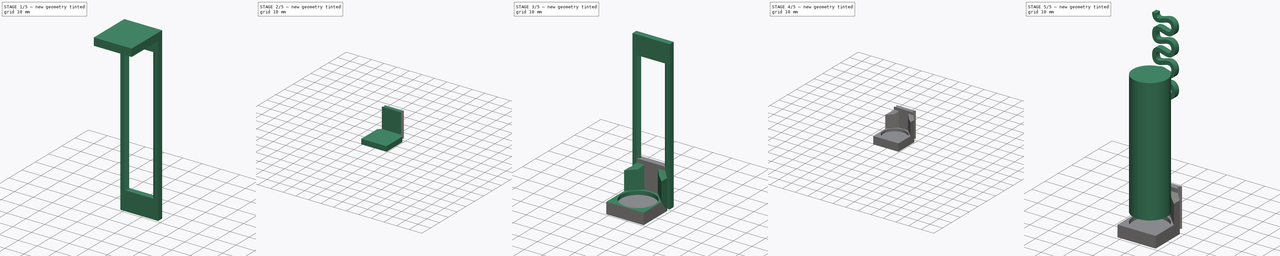
[diagram: build sequence overview — one tinted view per stage of 5, left to right]
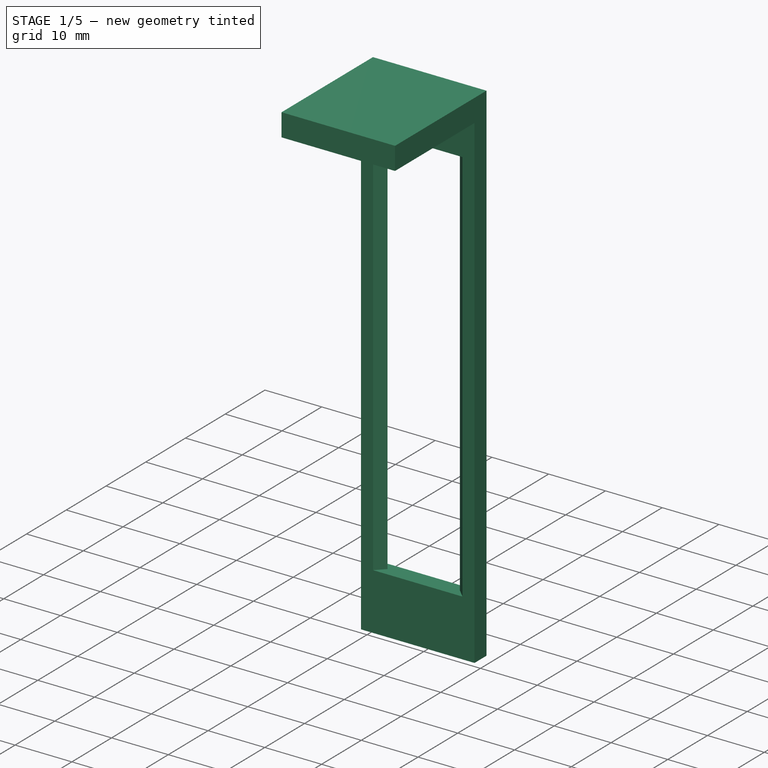
[diagram: stage 1 of 5 — iso view after this stage's code; geometry added in this stage tinted green]
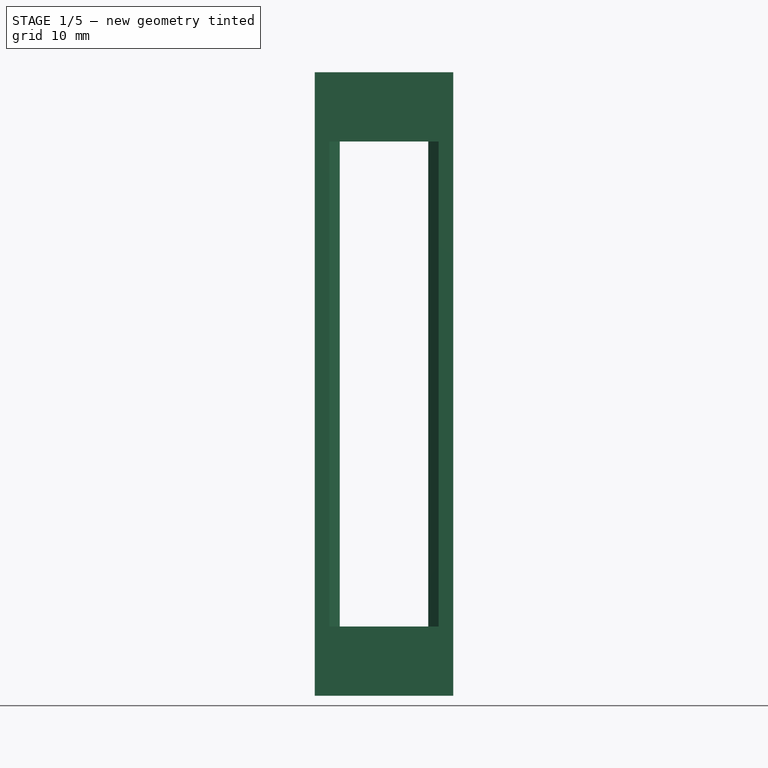
[diagram: stage 1 of 5 — front view after this stage's code; geometry added in this stage tinted green]
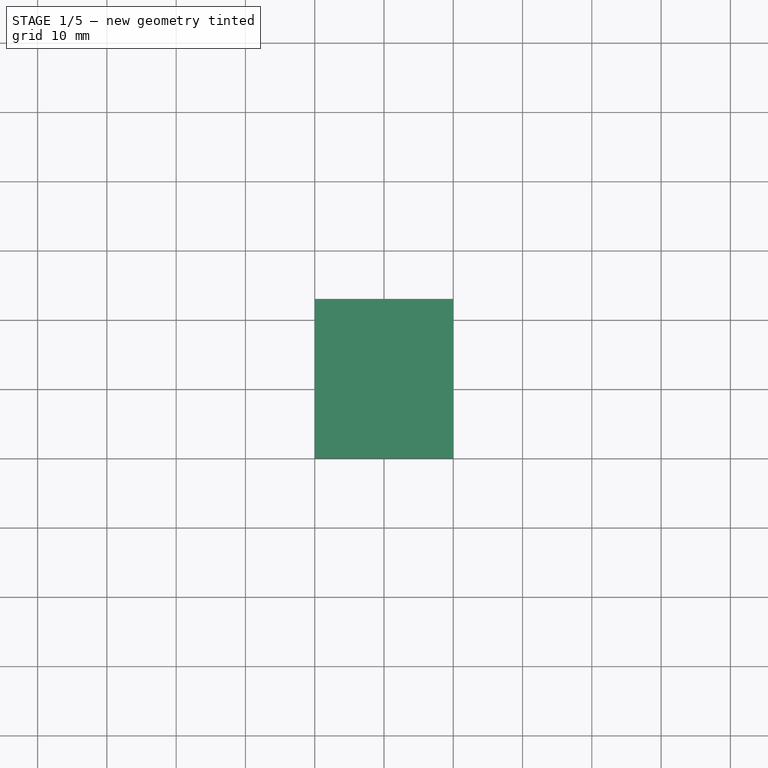
[diagram: stage 1 of 5 — top view after this stage's code; geometry added in this stage tinted green]
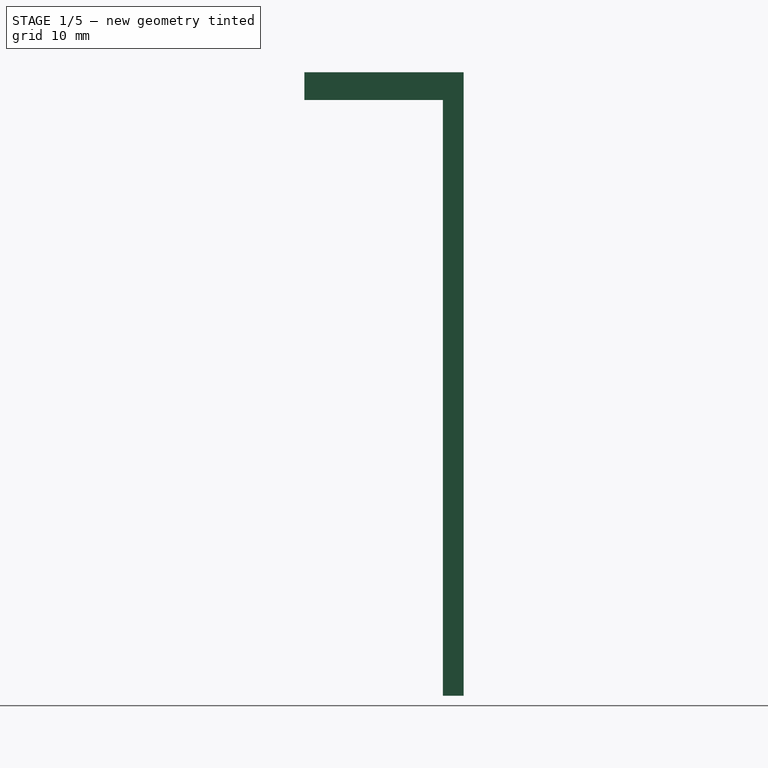
[diagram: stage 1 of 5 — right view after this stage's code; geometry added in this stage tinted green]
FCSTD DOCUMENT  (FreeCAD 1.1R20251111 (Git shallow))
Label: 18650mount
License: All rights reserved
LicenseURL: https://en.wikipedia.org/wiki/All_rights_reserved
objects: Sketcher::SketchObject×19, PartDesign::Pad×16, App::Point×6, PartDesign::Body×6, Part::DatumPlane×3, PartDesign::SubShapeBinder×3, PartDesign::Chamfer×2, PartDesign::AdditivePipe×1, PartDesign::LinearPattern×1, PartDesign::Pocket×1
note: 109 computed .brp shape members not serialized (recipe doc carries the construction recipe); baked Part::Feature solids carry a one-line shape summary decoded from their .brp

FEATURE [PartDesign::Body] Body001  label="sled"
  AllowCompound = true
  Group = -> [DatumPlane,Binder,Sketch003,Pad003,Sketch008,Pad006,Sketch009,Pad007]
  Origin = -> Origin002
  Placement = pos=(0,0,10) rot=(0,0,1;0rad)
  Tip = -> Pad007
FEATURE [PartDesign::SubShapeBinder] Binder002
  BindCopyOnChange = 0
  BindMode = 0
  ClaimChildren = false
  Context = -> Body005 [Binder002.]
  Fuse = false
  MakeFace = true
  OffsetFill = false
  OffsetIntersection = false
  OffsetJoinType = 0
  OffsetOpenResult = false
  PartialLoad = false
  Refine = true
  Relative = true
  Support = -> [Body004[Pad010.Face9]]
  _Version = 2
FEATURE [Part::DatumPlane] DatumPlane002
  AttachmentOffset = pos=(0,0,-70) rot=(0,0,1;0rad)
  AttachmentSupport = -> [Origin014]
  MapMode = 2
  Placement = pos=(0,0,-70) rot=(0,0,1;0rad)
FEATURE [App::Point] Origin013  label="Origin016"
  Role = Origin
FEATURE [App::Point] Origin015  label="Origin018"
  Role = Origin
FEATURE [Sketcher::SketchObject] Sketch010
  ArcFitTolerance = 1e-06
  AttachmentSupport = -> [Origin012]
  ExternalTypes = [0]
  FullyConstrained = false
  MakeInternals = false
  MapMode = 5
  sketch-geometry (5):
    g0: LineSegment StartX=-10 StartY=-1.5 StartZ=0 EndX=10 EndY=-1.5 EndZ=0
    g1: LineSegment StartX=10 StartY=-1.5 StartZ=0 EndX=10 EndY=1.5 EndZ=0
    g2: LineSegment StartX=10 StartY=1.5 StartZ=0 EndX=-10 EndY=1.5 EndZ=0
    g3: LineSegment StartX=-10 StartY=1.5 StartZ=0 EndX=-10 EndY=-1.5 EndZ=0
    g4: GeomPoint [constr] X=0 Y=0 Z=0
  constraints (11):
    c: Coincident(g0,g1)
    c: Coincident(g1,g2)
    c: Coincident(g2,g3)
    c: Coincident(g3,g0)
    c: Horizontal(g0)
    c: Horizontal(g2)
    c: Vertical(g1)
    c: Vertical(g3)
    c: Symmetric(g2,g0,g4)
    c: Distance(g1,g3) = 20
    c: Distance(g0,g2) = 3
FEATURE [PartDesign::Pad] Pad008
  Direction = (0,0,1)
  Length = 10
  Length2 = 10
  Profile = -> Sketch010
  ReferenceAxis = -> Sketch010 [N_Axis]
  Refine = true
  SideType = 0
  Suppressed = false
  Type = 0
  Type2 = 0
FEATURE [Sketcher::SketchObject] Sketch011
  ArcFitTolerance = 1e-06
  AttachmentSupport = -> [Pad008]
  ExternalGeometry = -> [Pad008]
  ExternalTypes = [0,0]
  FullyConstrained = false
  MakeInternals = false
  MapMode = 5
  Placement = pos=(0,0,0) rot=(1,0,0;3.14159rad)
  sketch-geometry (12):
    g0: LineSegment StartX=-7.87868 StartY=1.5 StartZ=0 EndX=-6.37868 EndY=0 EndZ=0
    g1: LineSegment StartX=-6.37868 StartY=0 StartZ=0 EndX=-7.87868 EndY=-1.5 EndZ=0
    g2: LineSegment StartX=-7.87868 StartY=1.5 StartZ=0 EndX=-10 EndY=1.5 EndZ=0
    g3: LineSegment StartX=-7.87868 StartY=-1.5 StartZ=0 EndX=-10 EndY=-1.5 EndZ=0
    g4: LineSegment StartX=-10 StartY=-1.5 StartZ=0 EndX=-10 EndY=1.5 EndZ=0
    g5: GeomPoint X=-10 Y=0 Z=0
    g6: LineSegment StartX=7.87868 StartY=1.5 StartZ=0 EndX=6.37868 EndY=0 EndZ=0
    g7: LineSegment StartX=6.37868 StartY=0 StartZ=0 EndX=7.87868 EndY=-1.5 EndZ=0
    g8: LineSegment StartX=7.87868 StartY=1.5 StartZ=0 EndX=10 EndY=1.5 EndZ=0
    g9: LineSegment StartX=7.87868 StartY=-1.5 StartZ=0 EndX=10 EndY=-1.5 EndZ=0
    g10: LineSegment StartX=10 StartY=-1.5 StartZ=0 EndX=10 EndY=1.5 EndZ=0
    g11: GeomPoint X=10 Y=0 Z=0
  constraints (23):
    c: PointOnObject(g0,g-1)
    c: Coincident(g1,g0)
    c: Perpendicular(g1,g0)
    c: PointOnObject(g0,g-3)
    c: PointOnObject(g1,g-4)
    c: Coincident(g2,g0)
    c: Coincident(g2,g-3)
    c: Coincident(g3,g1)
    c: Coincident(g3,g-4)
    c: Coincident(g4,g3)
    c: Coincident(g4,g2)
    c: Symmetric(g4,g4,g5)
    c: Equal(g0,g2)
    c: Equal(g1,g3)
    c: Coincident(g7,g6)
    c: Perpendicular(g7,g6)
    c: Coincident(g8,g6)
    c: Coincident(g9,g7)
    c: Coincident(g10,g9)
    c: Coincident(g10,g8)
    c: Symmetric(g10,g10,g11)
    c: Equal(g6,g8)
    c: Equal(g7,g9)
FEATURE [PartDesign::Pad] Pad009
  BaseFeature = -> Pad008
  Direction = (0,0,-1)
  Length = 70
  Length2 = 10
  Profile = -> Sketch011
  ReferenceAxis = -> Sketch011 [N_Axis]
  Refine = true
  SideType = 0
  Suppressed = false
  Type = 0
  Type2 = 0
FEATURE [Sketcher::SketchObject] Sketch012
  ArcFitTolerance = 1e-06
  AttachmentSupport = -> [Pad009]
  ExternalGeometry = -> [Pad009]
  ExternalTypes = [0,0,0]
  FullyConstrained = true
  MakeInternals = false
  MapMode = 5
  Placement = pos=(0,0,-70) rot=(1,0,0;3.14159rad)
  sketch-geometry (2):
    g0: LineSegment StartX=-10 StartY=1.5 StartZ=0 EndX=10 EndY=1.5 EndZ=0
    g1: LineSegment StartX=10 StartY=-1.5 StartZ=0 EndX=-10 EndY=-1.5 EndZ=0
  constraints (4):
    c: Coincident(g0,g-5)
    c: Coincident(g0,g-3)
    c: Coincident(g1,g-3)
    c: Coincident(g1,g-5)
FEATURE [PartDesign::Pad] Pad010
  BaseFeature = -> Pad009
  Direction = (0,0,-1)
  Length = 10
  Length2 = 10
  Profile = -> Sketch012
  ReferenceAxis = -> Sketch012 [N_Axis]
  Refine = true
  SideType = 0
  Suppressed = false
  Type = 0
  Type2 = 0
FEATURE [Sketcher::SketchObject] Sketch014
  ArcFitTolerance = 1e-06
  AttachmentSupport = -> [Pad010]
  ExternalGeometry = -> [Pad010]
  ExternalTypes = [0,0,0]
  FullyConstrained = true
  MakeInternals = false
  MapMode = 5
  Placement = pos=(0,-1.5,0) rot=(1,0,0;1.5708rad)
  sketch-geometry (4):
    g0: LineSegment StartX=-10 StartY=10 StartZ=0 EndX=-10 EndY=6 EndZ=0
    g1: LineSegment StartX=-10 StartY=6 StartZ=0 EndX=10 EndY=6 EndZ=0
    g2: LineSegment StartX=10 StartY=6 StartZ=0 EndX=10 EndY=10 EndZ=0
    g3: LineSegment StartX=10 StartY=10 StartZ=0 EndX=-10 EndY=10 EndZ=0
  constraints (11):
    c: Coincident(g0,g1)
    c: Coincident(g1,g2)
    c: Coincident(g2,g3)
    c: Coincident(g3,g0)
    c: Vertical(g0)
    c: Vertical(g2)
    c: Horizontal(g1)
    c: Horizontal(g3)
    c: Coincident(g0,g-5)
    c: PointOnObject(g1,g-3)
    c: DistanceY(g0,g0) = 4
FEATURE [PartDesign::Pad] Pad012
  BaseFeature = -> Pad010
  Direction = (0,-1,2e-16)
  Length = 20
  Length2 = 10
  Profile = -> Sketch014
  ReferenceAxis = -> Sketch014 [N_Axis]
  Refine = true
  SideType = 0
  Suppressed = false
  Type = 0
  Type2 = 0
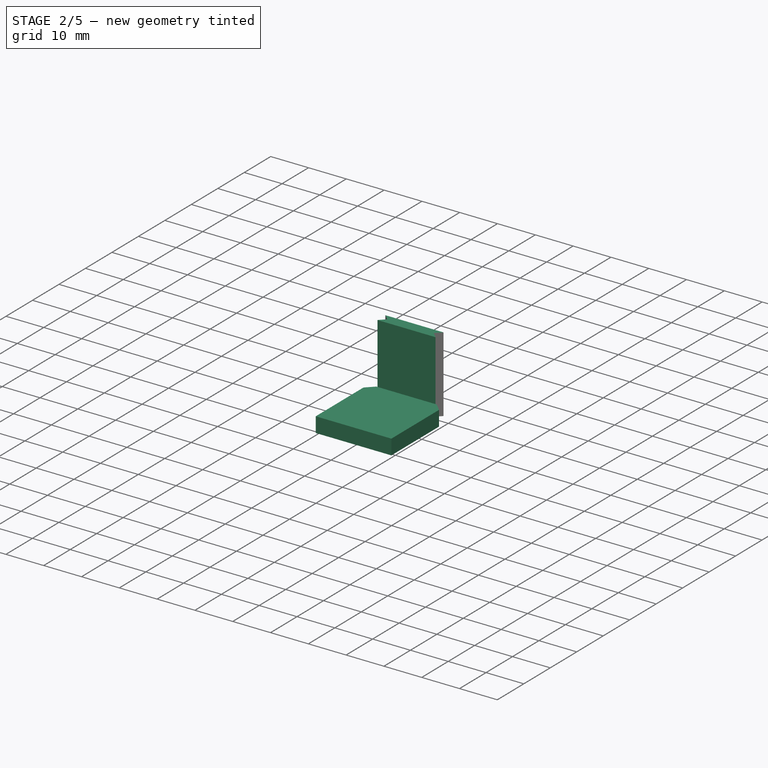
[diagram: stage 2 of 5 — iso view after this stage's code; geometry added in this stage tinted green]
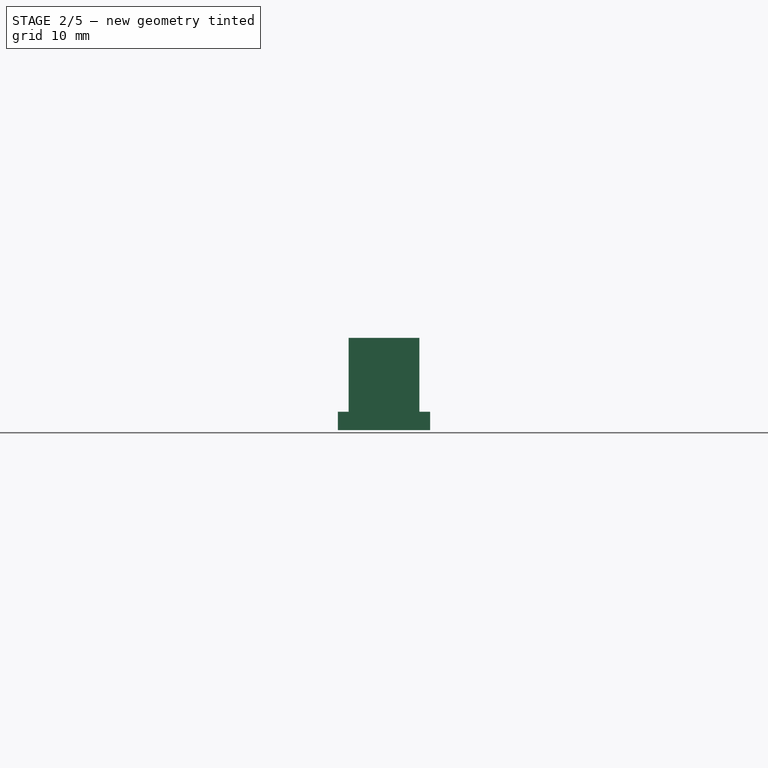
[diagram: stage 2 of 5 — front view after this stage's code; geometry added in this stage tinted green]
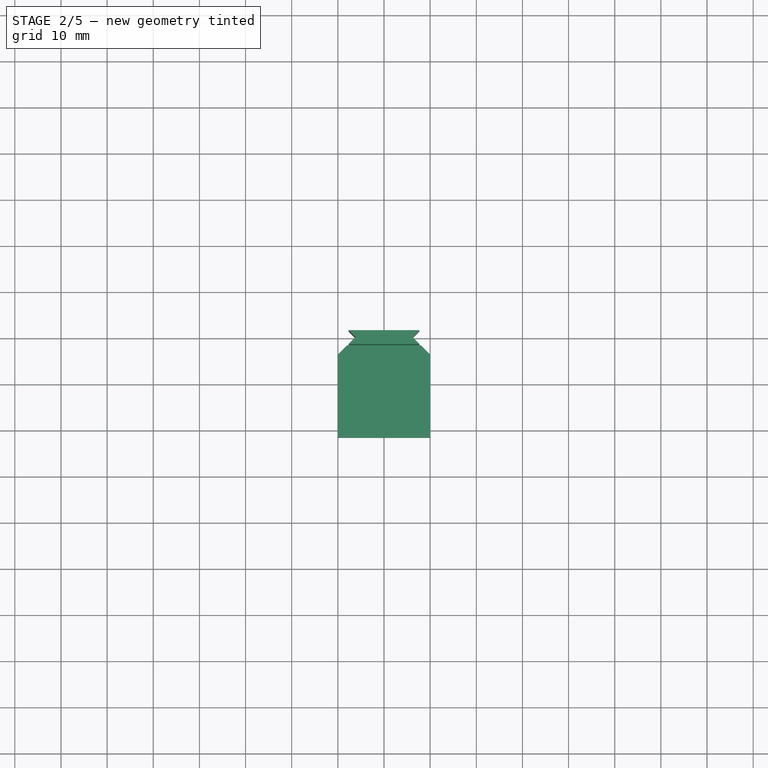
[diagram: stage 2 of 5 — top view after this stage's code; geometry added in this stage tinted green]
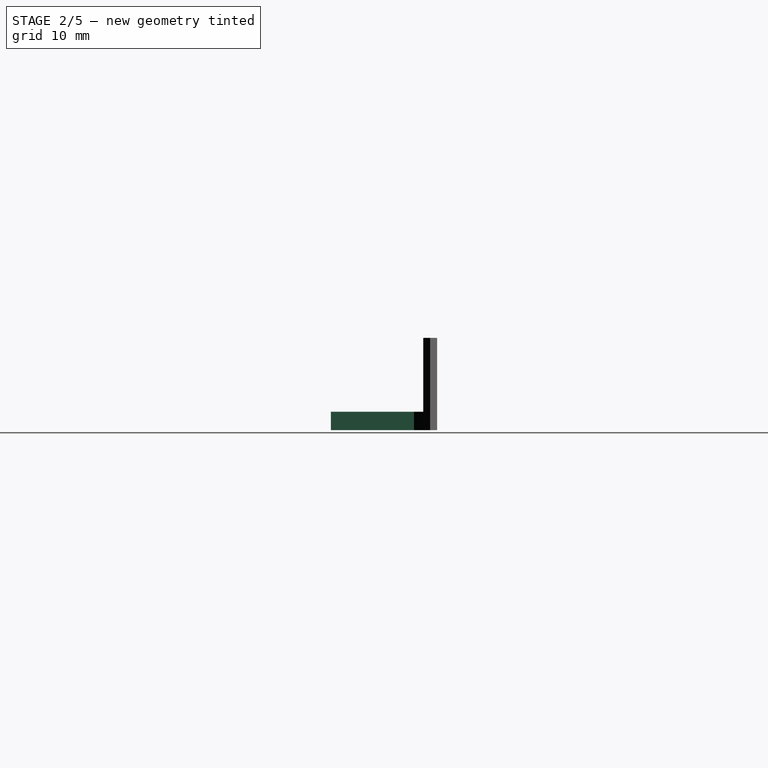
[diagram: stage 2 of 5 — right view after this stage's code; geometry added in this stage tinted green]
FEATURE [Sketcher::SketchObject] Sketch013
  ArcFitTolerance = 1e-06
  AttachmentSupport = -> [DatumPlane002]
  ExternalGeometry = -> [Binder002]
  ExternalTypes = [0]
  FullyConstrained = true
  MakeInternals = false
  MapMode = 5
  Placement = pos=(0,0,-70) rot=(0,0,1;0rad)
  sketch-geometry (7):
    g0: LineSegment StartX=-7.67868 StartY=-1.5 StartZ=0 EndX=7.67868 EndY=-1.5 EndZ=0
    g1: LineSegment StartX=6.17868 StartY=0 StartZ=0 EndX=7.67868 EndY=-1.5 EndZ=0
    g2: LineSegment StartX=6.17868 StartY=0 StartZ=0 EndX=7.67868 EndY=1.5 EndZ=0
    g3: LineSegment StartX=7.67868 StartY=1.5 StartZ=0 EndX=-7.67868 EndY=1.5 EndZ=0
    g4: LineSegment StartX=-7.67868 StartY=1.5 StartZ=0 EndX=-6.17868 EndY=0 EndZ=0
    g5: LineSegment StartX=-6.17868 StartY=0 StartZ=0 EndX=-7.67868 EndY=-1.5 EndZ=0
    g6: GeomPoint X=0 Y=1.5 Z=0
  constraints (19):
    c: PointOnObject(g0,g-8)
    c: PointOnObject(g0,g-8)
    c: PointOnObject(g1,g-1)
    c: Coincident(g1,g0)
    c: Coincident(g2,g1)
    c: PointOnObject(g2,g-5)
    c: Coincident(g3,g2)
    c: PointOnObject(g3,g-5)
    c: PointOnObject(g4,g-1)
    c: Coincident(g5,g0)
    c: Coincident(g5,g4)
    c: Coincident(g3,g4)
    c: Parallel(g2,g-6)
    c: Parallel(g1,g-7)
    c: Parallel(g4,g-4)
    c: Parallel(g5,g-3)
    c: Symmetric(g3,g3,g6)
    c: PointOnObject(g6,g-2)
    c: DistanceX(g2,g-6) = 0.2
FEATURE [PartDesign::Pad] Pad011
  Direction = (0,0,1)
  Length = 20
  Length2 = 10
  Placement = pos=(0,0,-70) rot=(0,0,1;0rad)
  Profile = -> Sketch013
  ReferenceAxis = -> Sketch013 [N_Axis]
  Refine = true
  SideType = 0
  Suppressed = false
  Type = 0
  Type2 = 0
FEATURE [Sketcher::SketchObject] Sketch015
  ArcFitTolerance = 1e-06
  AttachmentSupport = -> [Pad011]
  ExternalTypes = [0]
  FullyConstrained = true
  MakeInternals = false
  MapMode = 5
  Placement = pos=(0,-1.5,-70) rot=(1,0,0;1.5708rad)
  sketch-geometry (5):
    g0: LineSegment StartX=-10 StartY=0 StartZ=0 EndX=10 EndY=0 EndZ=0
    g1: LineSegment StartX=10 StartY=0 StartZ=0 EndX=10 EndY=4 EndZ=0
    g2: LineSegment StartX=10 StartY=4 StartZ=0 EndX=-10 EndY=4 EndZ=0
    g3: LineSegment StartX=-10 StartY=4 StartZ=0 EndX=-10 EndY=0 EndZ=0
    g4: GeomPoint [constr] X=0 Y=2 Z=0
  constraints (13):
    c: Coincident(g0,g1)
    c: Coincident(g1,g2)
    c: Coincident(g2,g3)
    c: Coincident(g3,g0)
    c: Horizontal(g0)
    c: Horizontal(g2)
    c: Vertical(g1)
    c: Vertical(g3)
    c: Symmetric(g2,g0,g4)
    c: Distance(g1,g3) = 20
    c: Distance(g0,g2) = 4
    c: PointOnObject(g4,g-2)
    c: PointOnObject(g0,g-1)
FEATURE [PartDesign::Pad] Pad013
  BaseFeature = -> Pad011
  Direction = (0,-1,2e-16)
  Length = 20
  Length2 = 10
  Placement = pos=(0,0,-70) rot=(0,0,1;0rad)
  Profile = -> Sketch015
  ReferenceAxis = -> Sketch015 [N_Axis]
  Refine = true
  SideType = 0
  Suppressed = false
  Type = 0
  Type2 = 0
FEATURE [PartDesign::Chamfer] Chamfer
  Angle = 45
  Base = -> Pad013 [Edge22,Edge25]
  BaseFeature = -> Pad013
  ChamferType = 0
  FlipDirection = false
  Placement = pos=(0,0,-70) rot=(0,0,1;0rad)
  Refine = true
  Size = 2
  Size2 = 1
  SupportTransform = false
  Suppressed = false
  UseAllEdges = false
FEATURE [PartDesign::Body] Body005  label="sled001"
  AllowCompound = true
  Group = -> [DatumPlane002,Binder002,Sketch013,Pad011,Sketch015,Pad013,Chamfer,Sketch016,Pad014,Sketch017,Pad015,Chamfer001]
  Origin = -> Origin014
  Placement = pos=(0,0,10) rot=(0,0,1;0rad)
  Tip = -> Chamfer001
FEATURE [Sketcher::SketchObject] Sketch018
  ArcFitTolerance = 1e-06
  AttachmentSupport = -> [Pad012]
  ExternalGeometry = -> [Pad012]
  ExternalTypes = [0]
  FullyConstrained = true
  MakeInternals = false
  MapMode = 5
  Placement = pos=(0,1.3e-15,6) rot=(1,0,0;3.14159rad)
  sketch-geometry (3):
    g0: GeomPoint [constr] X=0 Y=21.5 Z=0
    g1: LineSegment [constr] StartX=0 StartY=21.5 StartZ=0 EndX=0 EndY=11.5 EndZ=0
    g2: Circle CenterX=0 CenterY=11.5 CenterZ=0 NormalX=0 NormalY=0 NormalZ=1 AngleXU=0 Radius=9
  constraints (7):
    c: PointOnObject(g0,g-2)
    c: PointOnObject(g0,g-3)
    c: Coincident(g1,g0)
    c: PointOnObject(g1,g-2)
    c: DistanceY(g1,g1) = 10
    c: Diameter(g2) = 18
    c: Coincident(g2,g1)
FEATURE [PartDesign::Pocket] Pocket
  BaseFeature = -> Pad012
  Direction = (0,0,1)
  Length = 1
  Length2 = 5
  Profile = -> Sketch018
  ReferenceAxis = -> Sketch018 [N_Axis]
  Refine = true
  SideType = 0
  Suppressed = false
  Type = 0
  Type2 = 0
FEATURE [PartDesign::Body] Body004  label="chasis001"
  AllowCompound = true
  Group = -> [Sketch010,Pad008,Sketch011,Pad009,Sketch012,Pad010,Sketch014,Pad012,Sketch018,Pocket]
  Origin = -> Origin012
  Tip = -> Pocket
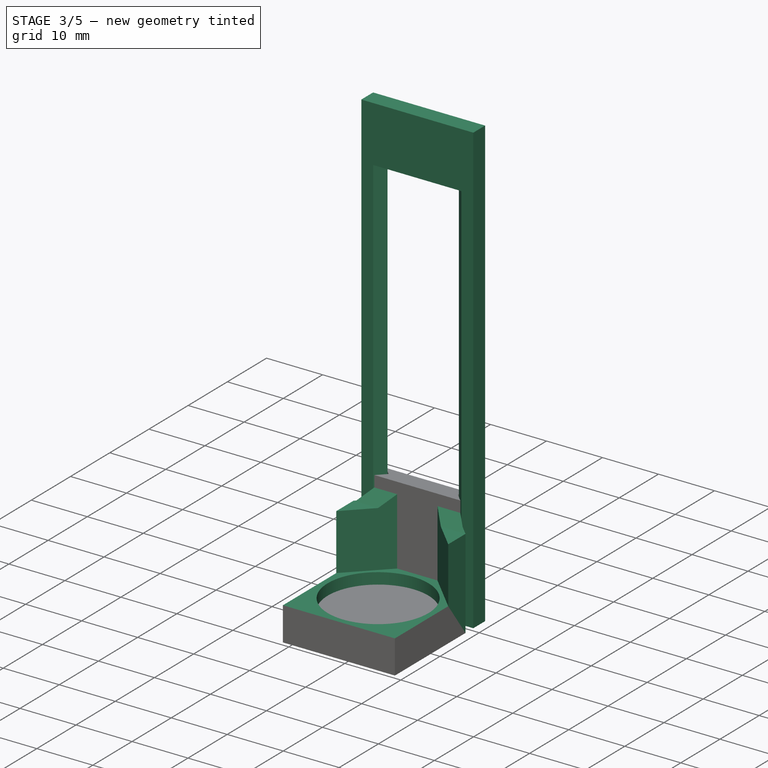
[diagram: stage 3 of 5 — iso view after this stage's code; geometry added in this stage tinted green]
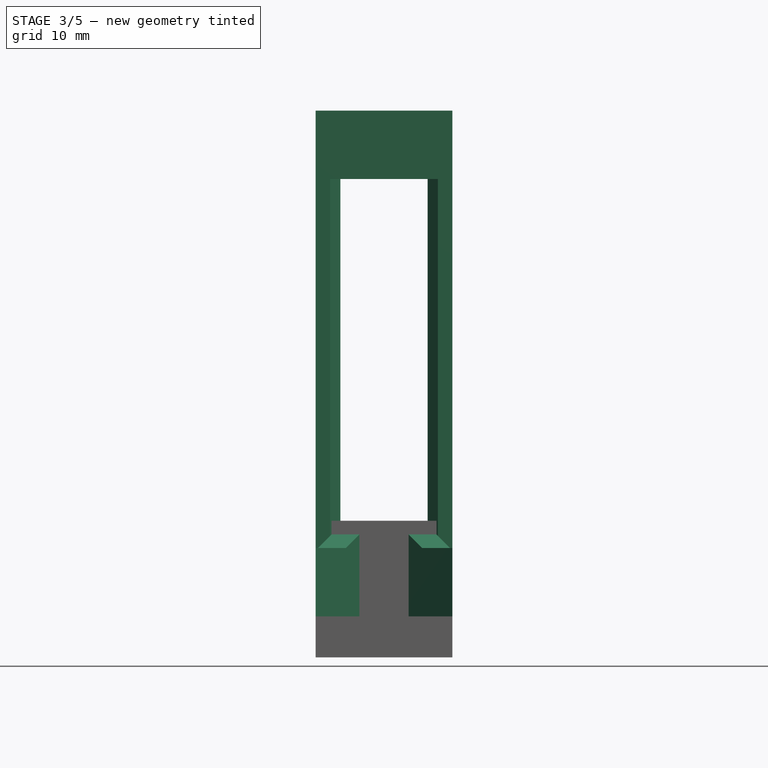
[diagram: stage 3 of 5 — front view after this stage's code; geometry added in this stage tinted green]
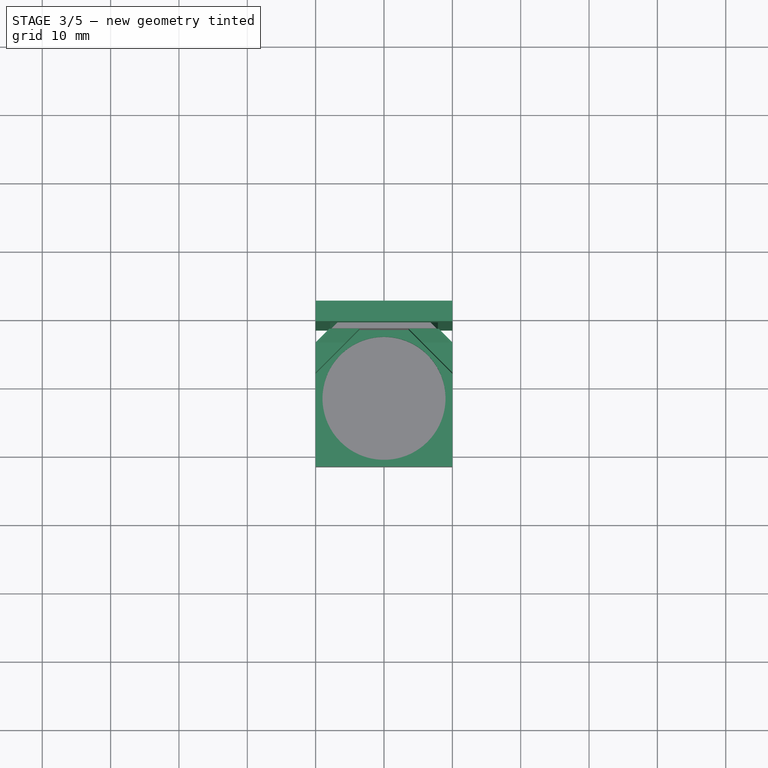
[diagram: stage 3 of 5 — top view after this stage's code; geometry added in this stage tinted green]
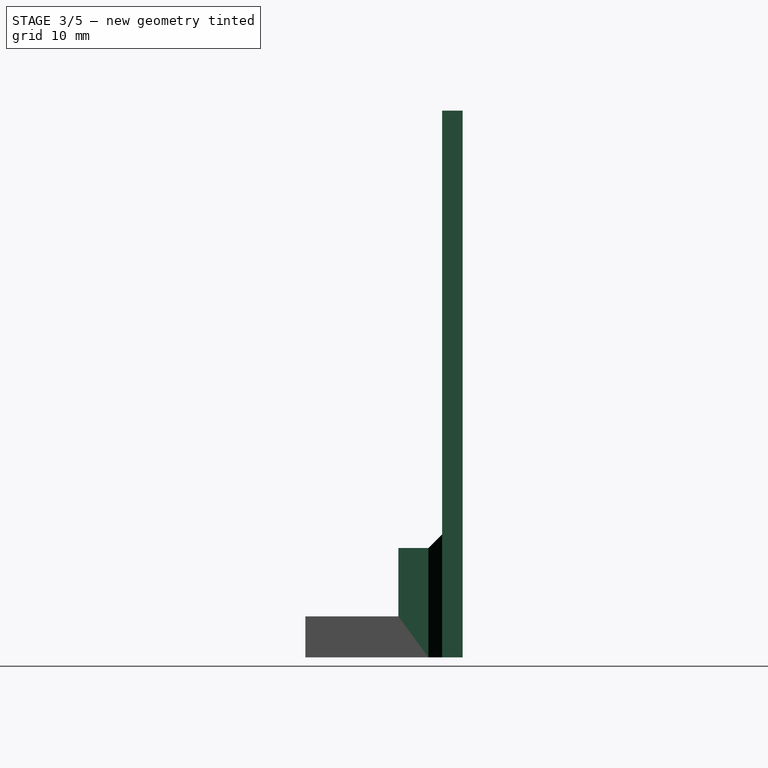
[diagram: stage 3 of 5 — right view after this stage's code; geometry added in this stage tinted green]
FEATURE [App::Point] Origin001
  Role = Origin
FEATURE [Sketcher::SketchObject] Sketch
  ArcFitTolerance = 1e-06
  AttachmentSupport = -> [Origin]
  ExternalTypes = [0]
  FullyConstrained = false
  MakeInternals = false
  MapMode = 5
  sketch-geometry (5):
    g0: LineSegment StartX=-10 StartY=-1.5 StartZ=0 EndX=10 EndY=-1.5 EndZ=0
    g1: LineSegment StartX=10 StartY=-1.5 StartZ=0 EndX=10 EndY=1.5 EndZ=0
    g2: LineSegment StartX=10 StartY=1.5 StartZ=0 EndX=-10 EndY=1.5 EndZ=0
    g3: LineSegment StartX=-10 StartY=1.5 StartZ=0 EndX=-10 EndY=-1.5 EndZ=0
    g4: GeomPoint [constr] X=0 Y=0 Z=0
  constraints (11):
    c: Coincident(g0,g1)
    c: Coincident(g1,g2)
    c: Coincident(g2,g3)
    c: Coincident(g3,g0)
    c: Horizontal(g0)
    c: Horizontal(g2)
    c: Vertical(g1)
    c: Vertical(g3)
    c: Symmetric(g2,g0,g4)
    c: Distance(g1,g3) = 20
    c: Distance(g0,g2) = 3
FEATURE [PartDesign::Pad] Pad
  Direction = (0,0,1)
  Length = 10
  Length2 = 10
  Profile = -> Sketch
  ReferenceAxis = -> Sketch [N_Axis]
  Refine = true
  SideType = 0
  Suppressed = false
  Type = 0
  Type2 = 0
FEATURE [Sketcher::SketchObject] Sketch001
  ArcFitTolerance = 1e-06
  AttachmentSupport = -> [Pad]
  ExternalGeometry = -> [Pad]
  ExternalTypes = [0,0]
  FullyConstrained = false
  MakeInternals = false
  MapMode = 5
  Placement = pos=(0,0,0) rot=(1,0,0;3.14159rad)
  sketch-geometry (12):
    g0: LineSegment StartX=-7.87868 StartY=1.5 StartZ=0 EndX=-6.37868 EndY=0 EndZ=0
    g1: LineSegment StartX=-6.37868 StartY=0 StartZ=0 EndX=-7.87868 EndY=-1.5 EndZ=0
    g2: LineSegment StartX=-7.87868 StartY=1.5 StartZ=0 EndX=-10 EndY=1.5 EndZ=0
    g3: LineSegment StartX=-7.87868 StartY=-1.5 StartZ=0 EndX=-10 EndY=-1.5 EndZ=0
    g4: LineSegment StartX=-10 StartY=-1.5 StartZ=0 EndX=-10 EndY=1.5 EndZ=0
    g5: GeomPoint X=-10 Y=0 Z=0
    g6: LineSegment StartX=7.87868 StartY=1.5 StartZ=0 EndX=6.37868 EndY=0 EndZ=0
    g7: LineSegment StartX=6.37868 StartY=0 StartZ=0 EndX=7.87868 EndY=-1.5 EndZ=0
    g8: LineSegment StartX=7.87868 StartY=1.5 StartZ=0 EndX=10 EndY=1.5 EndZ=0
    g9: LineSegment StartX=7.87868 StartY=-1.5 StartZ=0 EndX=10 EndY=-1.5 EndZ=0
    g10: LineSegment StartX=10 StartY=-1.5 StartZ=0 EndX=10 EndY=1.5 EndZ=0
    g11: GeomPoint X=10 Y=0 Z=0
  constraints (23):
    c: PointOnObject(g0,g-1)
    c: Coincident(g1,g0)
    c: Perpendicular(g1,g0)
    c: PointOnObject(g0,g-3)
    c: PointOnObject(g1,g-4)
    c: Coincident(g2,g0)
    c: Coincident(g2,g-3)
    c: Coincident(g3,g1)
    c: Coincident(g3,g-4)
    c: Coincident(g4,g3)
    c: Coincident(g4,g2)
    c: Symmetric(g4,g4,g5)
    c: Equal(g0,g2)
    c: Equal(g1,g3)
    c: Coincident(g7,g6)
    c: Perpendicular(g7,g6)
    c: Coincident(g8,g6)
    c: Coincident(g9,g7)
    c: Coincident(g10,g9)
    c: Coincident(g10,g8)
    c: Symmetric(g10,g10,g11)
    c: Equal(g6,g8)
    c: Equal(g7,g9)
FEATURE [PartDesign::Pad] Pad001
  BaseFeature = -> Pad
  Direction = (0,0,-1)
  Length = 70
  Length2 = 10
  Profile = -> Sketch001
  ReferenceAxis = -> Sketch001 [N_Axis]
  Refine = true
  SideType = 0
  Suppressed = false
  Type = 0
  Type2 = 0
FEATURE [Sketcher::SketchObject] Sketch016
  ArcFitTolerance = 1e-06
  AttachmentSupport = -> [Chamfer]
  ExternalGeometry = -> [Chamfer]
  ExternalTypes = [0]
  FullyConstrained = true
  MakeInternals = false
  MapMode = 5
  Placement = pos=(0,9e-16,-66) rot=(0,0,1;0rad)
  sketch-geometry (2):
    g0: Circle CenterX=0 CenterY=-11.5 CenterZ=0 NormalX=0 NormalY=0 NormalZ=1 AngleXU=0 Radius=9
    g1: LineSegment [constr] StartX=-5e-16 StartY=-21.5 StartZ=0 EndX=0 EndY=-11.5 EndZ=0
  constraints (5):
    c: Diameter(g0) = 18
    c: PointOnObject(g0,g-2)
    c: Symmetric(g-5,g-5,g1)
    c: DistanceY(g1,g1) = 10
    c: Coincident(g1,g0)
FEATURE [PartDesign::Pad] Pad014
  BaseFeature = -> Chamfer
  Direction = (0,0,1)
  Length = 2
  Length2 = 10
  Placement = pos=(0,0,-70) rot=(0,0,1;0rad)
  Profile = -> Sketch016
  ReferenceAxis = -> Sketch016 [N_Axis]
  Refine = true
  SideType = 0
  Suppressed = false
  Type = 0
  Type2 = 0
FEATURE [Sketcher::SketchObject] Sketch017
  ArcFitTolerance = 1e-06
  AttachmentSupport = -> [Pad014]
  ExternalGeometry = -> [Pad014]
  ExternalTypes = [0]
  FullyConstrained = false
  MakeInternals = false
  MapMode = 5
  Placement = pos=(0,0,-64) rot=(0,0,1;0rad)
  sketch-geometry (10):
    g0: LineSegment StartX=-3.60189 StartY=-1.5 StartZ=0 EndX=-10 EndY=-7.89811 EndZ=0
    g1: LineSegment StartX=-10 StartY=-7.89811 StartZ=0 EndX=-10 EndY=-3.5 EndZ=0
    g2: LineSegment [constr] StartX=8 StartY=-1.5 StartZ=0 EndX=-8 EndY=-1.5 EndZ=0
    g3: LineSegment [constr] StartX=8 StartY=-1.5 StartZ=0 EndX=-3.60189 EndY=-1.5 EndZ=0
    g4: LineSegment StartX=-10 StartY=-3.5 StartZ=0 EndX=-8 EndY=-1.5 EndZ=0
    g5: LineSegment StartX=-3.60189 StartY=-1.5 StartZ=0 EndX=-8 EndY=-1.5 EndZ=0
    g6: LineSegment StartX=10 StartY=-3.5 StartZ=0 EndX=8 EndY=-1.5 EndZ=0
    g7: LineSegment StartX=8 StartY=-1.5 StartZ=0 EndX=3.60189 EndY=-1.5 EndZ=0
    g8: LineSegment StartX=3.60189 StartY=-1.5 StartZ=0 EndX=10 EndY=-7.89811 EndZ=0
    g9: LineSegment StartX=10 StartY=-7.89811 StartZ=0 EndX=10 EndY=-3.5 EndZ=0
  constraints (23):
    c: PointOnObject(g0,g-8)
    c: PointOnObject(g0,g-5)
    c: Coincident(g1,g0)
    c: Coincident(g1,g-6)
    c: Coincident(g2,g-7)
    c: Coincident(g2,g-9)
    c: Coincident(g3,g-10)
    c: Coincident(g3,g0)
    c: Coincident(g4,g1)
    c: Coincident(g4,g2)
    c: Coincident(g5,g0)
    c: Coincident(g5,g2)
    c: Equal(g1,g5)
    c: Coincident(g6,g-10)
    c: Coincident(g6,g2)
    c: Coincident(g7,g2)
    c: PointOnObject(g7,g2)
    c: PointOnObject(g8,g-3)
    c: Coincident(g9,g8)
    c: Coincident(g9,g6)
    c: Equal(g7,g5)
    c: Equal(g9,g7)
    c: Coincident(g7,g8)
FEATURE [PartDesign::Pad] Pad015
  BaseFeature = -> Pad014
  Direction = (0,0,1)
  Length = 10
  Length2 = 10
  Placement = pos=(0,0,-70) rot=(0,0,1;0rad)
  Profile = -> Sketch017
  ReferenceAxis = -> Sketch017 [N_Axis]
  Refine = true
  SideType = 0
  Suppressed = false
  Type = 0
  Type2 = 0
FEATURE [PartDesign::Chamfer] Chamfer001
  Angle = 45
  Base = -> Pad015 [Edge21,Edge19]
  BaseFeature = -> Pad015
  ChamferType = 0
  FlipDirection = false
  Placement = pos=(0,0,-70) rot=(0,0,1;0rad)
  Refine = true
  Size = 2
  Size2 = 1
  SupportTransform = false
  Suppressed = false
  UseAllEdges = false
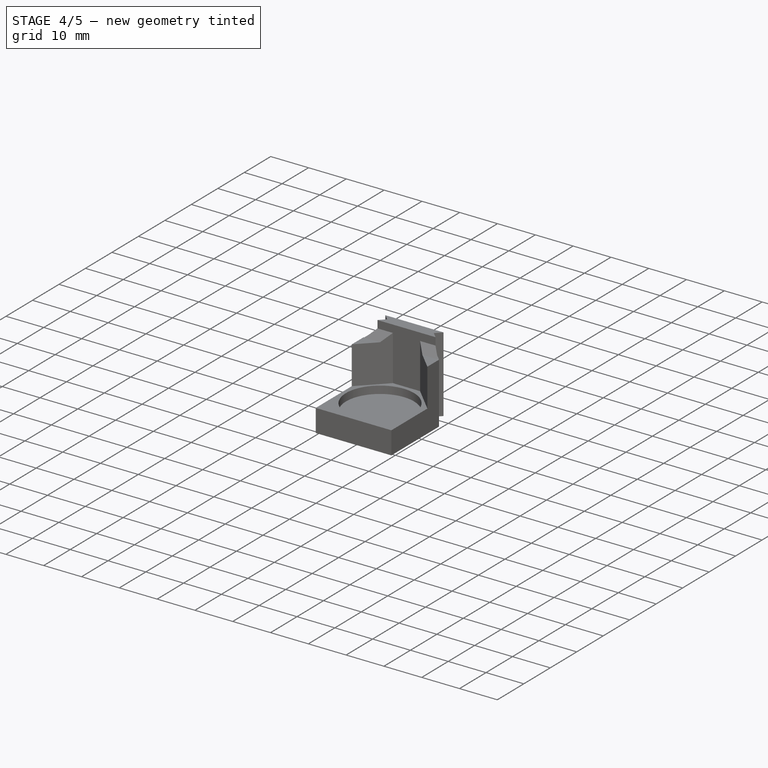
[diagram: stage 4 of 5 — iso view after this stage's code; geometry added in this stage tinted green]
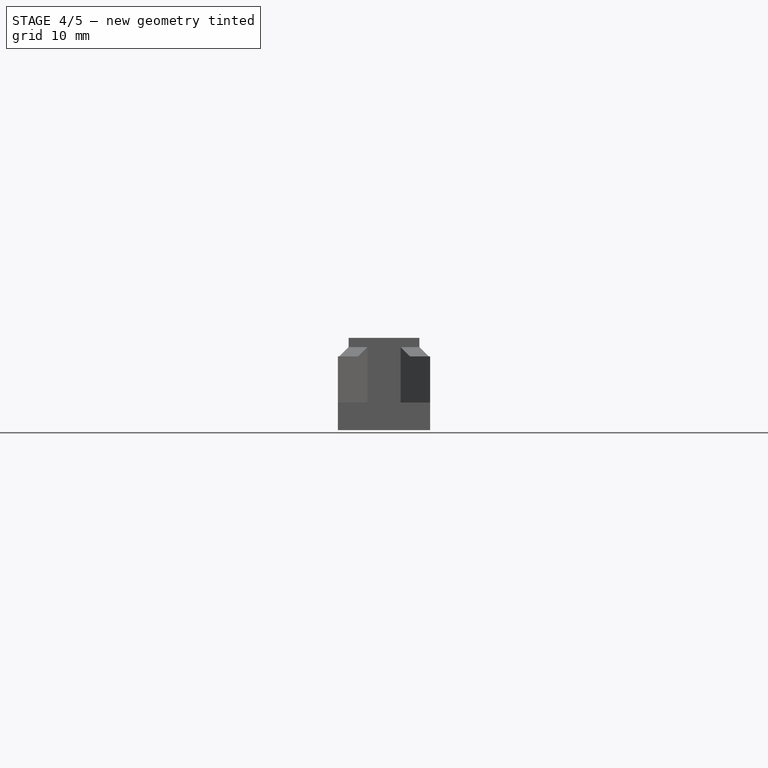
[diagram: stage 4 of 5 — front view after this stage's code; geometry added in this stage tinted green]
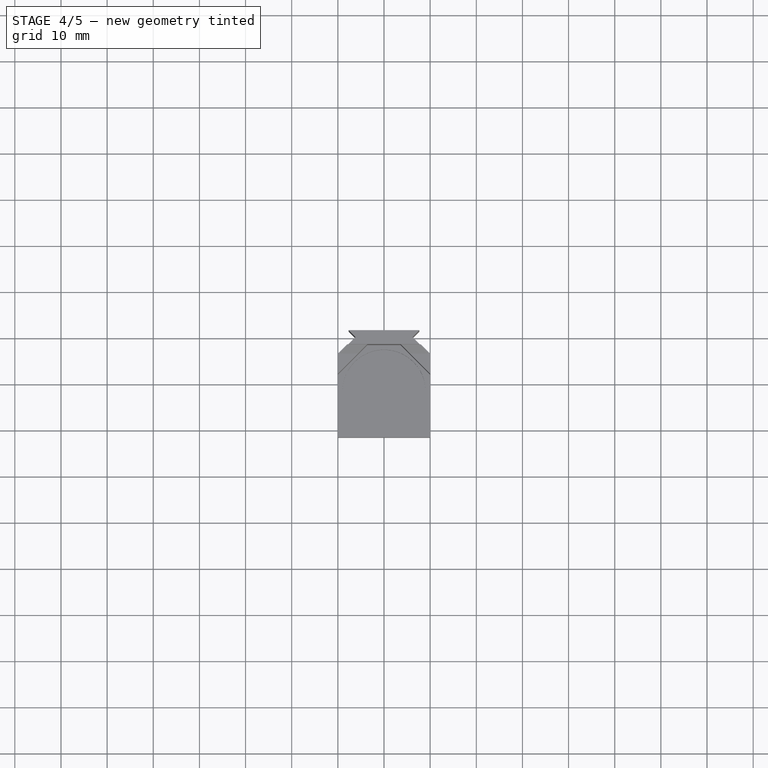
[diagram: stage 4 of 5 — top view after this stage's code; geometry added in this stage tinted green]
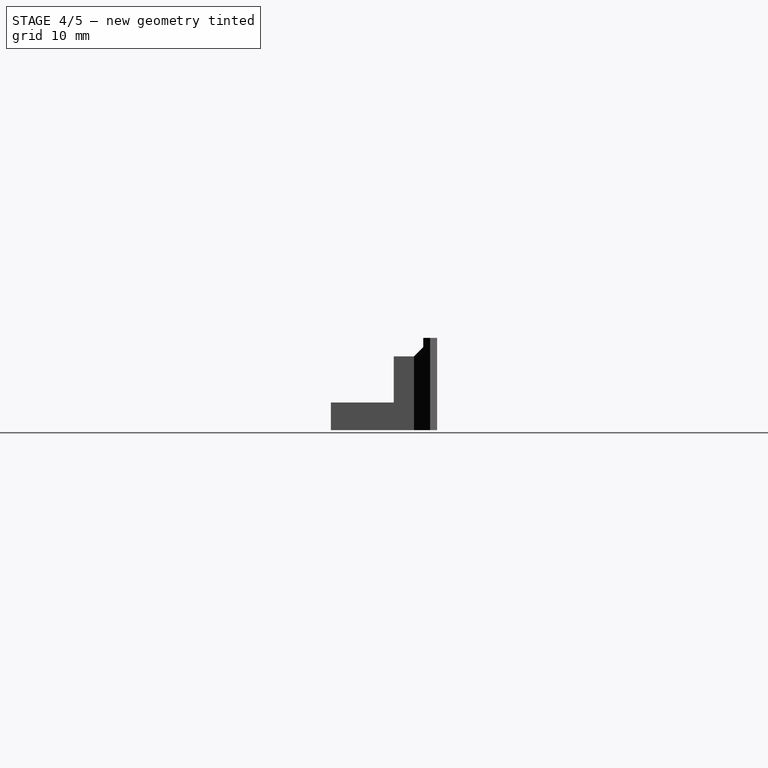
[diagram: stage 4 of 5 — right view after this stage's code; geometry added in this stage tinted green]
FEATURE [Sketcher::SketchObject] Sketch002
  ArcFitTolerance = 1e-06
  AttachmentSupport = -> [Pad001]
  ExternalGeometry = -> [Pad001]
  ExternalTypes = [0,0,0]
  FullyConstrained = true
  MakeInternals = false
  MapMode = 5
  Placement = pos=(0,0,-70) rot=(1,0,0;3.14159rad)
  sketch-geometry (2):
    g0: LineSegment StartX=-10 StartY=1.5 StartZ=0 EndX=10 EndY=1.5 EndZ=0
    g1: LineSegment StartX=10 StartY=-1.5 StartZ=0 EndX=-10 EndY=-1.5 EndZ=0
  constraints (4):
    c: Coincident(g0,g-5)
    c: Coincident(g0,g-3)
    c: Coincident(g1,g-3)
    c: Coincident(g1,g-5)
FEATURE [PartDesign::Pad] Pad002
  BaseFeature = -> Pad001
  Direction = (0,0,-1)
  Length = 10
  Length2 = 10
  Profile = -> Sketch002
  ReferenceAxis = -> Sketch002 [N_Axis]
  Refine = true
  SideType = 0
  Suppressed = false
  Type = 0
  Type2 = 0
FEATURE [App::Point] Origin003
  Role = Origin
FEATURE [Part::DatumPlane] DatumPlane
  AttachmentOffset = pos=(0,0,-70) rot=(0,0,1;0rad)
  AttachmentSupport = -> [Origin002]
  MapMode = 2
  Placement = pos=(0,0,-70) rot=(0,0,1;0rad)
FEATURE [PartDesign::SubShapeBinder] Binder
  BindCopyOnChange = 0
  BindMode = 0
  ClaimChildren = false
  Context = -> Body001 [Binder.]
  Fuse = false
  MakeFace = true
  OffsetFill = false
  OffsetIntersection = false
  OffsetJoinType = 0
  OffsetOpenResult = false
  PartialLoad = false
  Refine = true
  Relative = true
  Support = -> [Body[Pad002.Face9]]
  _Version = 2
FEATURE [Sketcher::SketchObject] Sketch003
  ArcFitTolerance = 1e-06
  AttachmentSupport = -> [DatumPlane]
  ExternalGeometry = -> [Binder]
  ExternalTypes = [0]
  FullyConstrained = true
  MakeInternals = false
  MapMode = 5
  Placement = pos=(0,0,-70) rot=(0,0,1;0rad)
  sketch-geometry (7):
    g0: LineSegment StartX=-7.67868 StartY=-1.5 StartZ=0 EndX=7.67868 EndY=-1.5 EndZ=0
    g1: LineSegment StartX=6.17868 StartY=0 StartZ=0 EndX=7.67868 EndY=-1.5 EndZ=0
    g2: LineSegment StartX=6.17868 StartY=0 StartZ=0 EndX=7.67868 EndY=1.5 EndZ=0
    g3: LineSegment StartX=7.67868 StartY=1.5 StartZ=0 EndX=-7.67868 EndY=1.5 EndZ=0
    g4: LineSegment StartX=-7.67868 StartY=1.5 StartZ=0 EndX=-6.17868 EndY=0 EndZ=0
    g5: LineSegment StartX=-6.17868 StartY=0 StartZ=0 EndX=-7.67868 EndY=-1.5 EndZ=0
    g6: GeomPoint X=0 Y=1.5 Z=0
  constraints (19):
    c: PointOnObject(g0,g-8)
    c: PointOnObject(g0,g-8)
    c: PointOnObject(g1,g-1)
    c: Coincident(g1,g0)
    c: Coincident(g2,g1)
    c: PointOnObject(g2,g-5)
    c: Coincident(g3,g2)
    c: PointOnObject(g3,g-5)
    c: PointOnObject(g4,g-1)
    c: Coincident(g5,g0)
    c: Coincident(g5,g4)
    c: Coincident(g3,g4)
    c: Parallel(g2,g-6)
    c: Parallel(g1,g-7)
    c: Parallel(g4,g-4)
    c: Parallel(g5,g-3)
    c: Symmetric(g3,g3,g6)
    c: PointOnObject(g6,g-2)
    c: DistanceX(g2,g-6) = 0.2
FEATURE [PartDesign::Pad] Pad003
  Direction = (0,0,1)
  Length = 20
  Length2 = 10
  Placement = pos=(0,0,-70) rot=(0,0,1;0rad)
  Profile = -> Sketch003
  ReferenceAxis = -> Sketch003 [N_Axis]
  Refine = true
  SideType = 0
  Suppressed = false
  Type = 0
  Type2 = 0
FEATURE [PartDesign::Body] Body002  label="spring"
  AllowCompound = true
  Group = -> [Sketch004,Sketch005,AdditivePipe,LinearPattern]
  Origin = -> Origin008
  Placement = pos=(0,0,-30) rot=(0,0,1;0rad)
  Tip = -> LinearPattern
FEATURE [Sketcher::SketchObject] Sketch006
  ArcFitTolerance = 1e-06
  AttachmentSupport = -> [Pad002]
  ExternalGeometry = -> [Pad002]
  ExternalTypes = [0,0,0]
  FullyConstrained = true
  MakeInternals = false
  MapMode = 5
  Placement = pos=(0,-1.5,0) rot=(1,0,0;1.5708rad)
  sketch-geometry (4):
    g0: LineSegment StartX=-10 StartY=10 StartZ=0 EndX=-10 EndY=7 EndZ=0
    g1: LineSegment StartX=-10 StartY=7 StartZ=0 EndX=10 EndY=7 EndZ=0
    g2: LineSegment StartX=10 StartY=7 StartZ=0 EndX=10 EndY=10 EndZ=0
    g3: LineSegment StartX=10 StartY=10 StartZ=0 EndX=-10 EndY=10 EndZ=0
  constraints (11):
    c: Coincident(g0,g1)
    c: Coincident(g1,g2)
    c: Coincident(g2,g3)
    c: Coincident(g3,g0)
    c: Vertical(g0)
    c: Vertical(g2)
    c: Horizontal(g1)
    c: Horizontal(g3)
    c: Coincident(g0,g-5)
    c: PointOnObject(g1,g-3)
    c: DistanceY(g0,g0) = 3
FEATURE [PartDesign::Pad] Pad004
  BaseFeature = -> Pad002
  Direction = (0,-1,2e-16)
  Length = 20
  Length2 = 10
  Profile = -> Sketch006
  ReferenceAxis = -> Sketch006 [N_Axis]
  Refine = true
  SideType = 0
  Suppressed = false
  Type = 0
  Type2 = 0
FEATURE [PartDesign::Body] Body003  label="18650"
  AllowCompound = true
  Group = -> [Binder001,DatumPlane001,Sketch007,Pad005]
  Origin = -> Origin010
  Placement = pos=(0,0,1) rot=(0,0,1;0rad)
  Tip = -> Pad005
FEATURE [Sketcher::SketchObject] Sketch008
  ArcFitTolerance = 1e-06
  AttachmentSupport = -> [Pad003]
  ExternalGeometry = -> [Pad003]
  ExternalTypes = [0]
  FullyConstrained = true
  MakeInternals = false
  MapMode = 5
  Placement = pos=(0,-1.5,-70) rot=(1,0,0;1.5708rad)
  sketch-geometry (4):
    g0: LineSegment StartX=-7.67868 StartY=3 StartZ=0 EndX=-7.67868 EndY=0 EndZ=0
    g1: LineSegment StartX=-7.67868 StartY=0 StartZ=0 EndX=7.67868 EndY=0 EndZ=0
    g2: LineSegment StartX=7.67868 StartY=0 StartZ=0 EndX=7.67868 EndY=3 EndZ=0
    g3: LineSegment StartX=7.67868 StartY=3 StartZ=0 EndX=-7.67868 EndY=3 EndZ=0
  constraints (11):
    c: Coincident(g0,g1)
    c: Coincident(g1,g2)
    c: Coincident(g2,g3)
    c: Coincident(g3,g0)
    c: Vertical(g0)
    c: Vertical(g2)
    c: Horizontal(g1)
    c: Horizontal(g3)
    c: PointOnObject(g0,g-3)
    c: Coincident(g1,g-5)
    c: DistanceY(g2,g2) = 3
FEATURE [PartDesign::Pad] Pad006
  BaseFeature = -> Pad003
  Direction = (0,-1,2e-16)
  Length = 3
  Length2 = 10
  Placement = pos=(0,0,-70) rot=(0,0,1;0rad)
  Profile = -> Sketch008
  ReferenceAxis = -> Sketch008 [N_Axis]
  Refine = true
  SideType = 0
  Suppressed = false
  Type = 0
  Type2 = 0
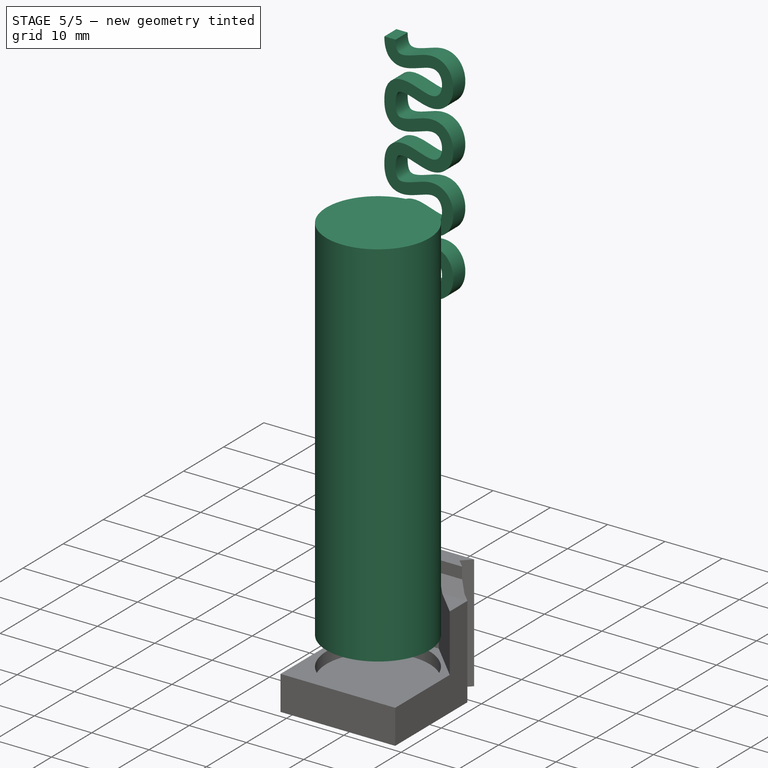
[diagram: stage 5 of 5 — iso view after this stage's code; geometry added in this stage tinted green]
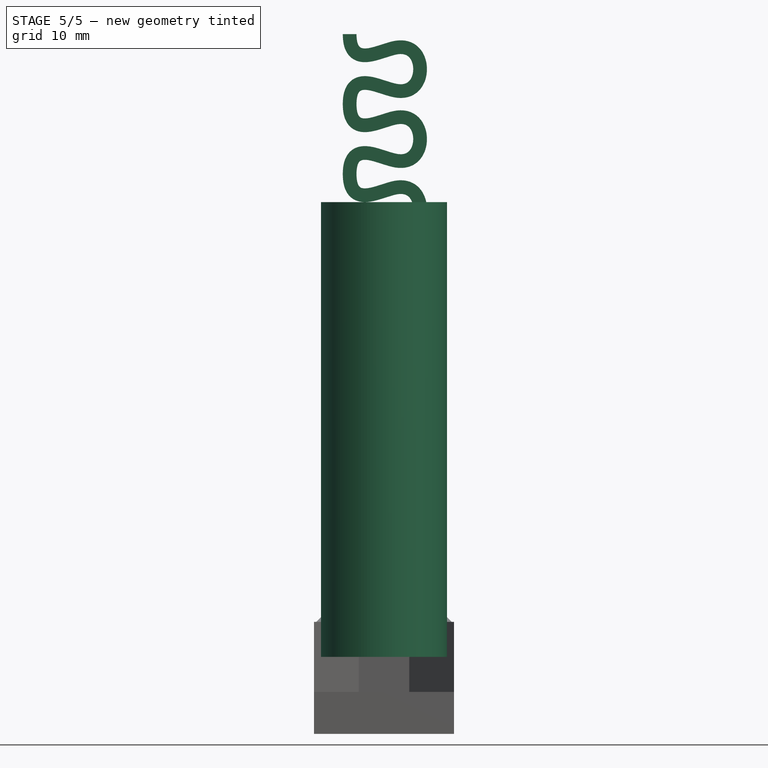
[diagram: stage 5 of 5 — front view after this stage's code; geometry added in this stage tinted green]
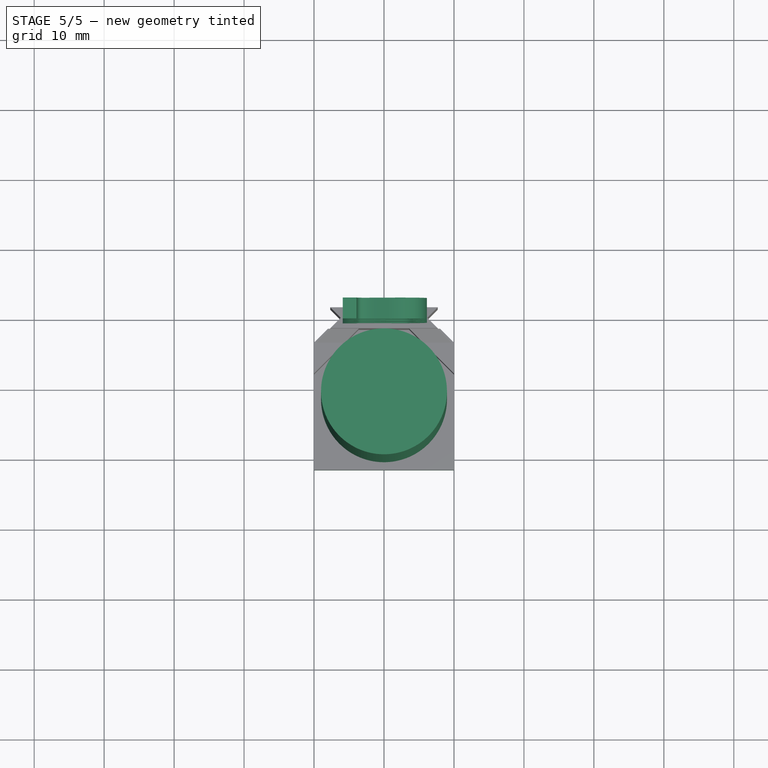
[diagram: stage 5 of 5 — top view after this stage's code; geometry added in this stage tinted green]
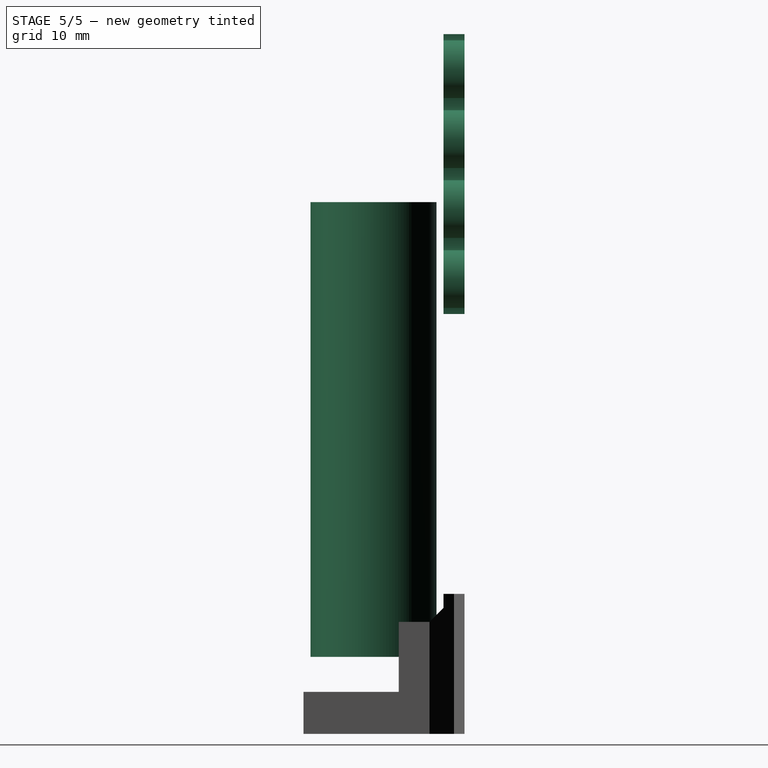
[diagram: stage 5 of 5 — right view after this stage's code; geometry added in this stage tinted green]
FEATURE [App::Point] Origin009  label="Origin011"
  Role = Origin
FEATURE [Sketcher::SketchObject] Sketch004
  ArcFitTolerance = 1e-06
  AttachmentSupport = -> [Origin008]
  ExternalTypes = [0]
  FullyConstrained = false
  MakeInternals = false
  MapMode = 5
  Placement = pos=(0,0,0) rot=(0,1,0;3.14159rad)
  sketch-geometry (5):
    g0: LineSegment StartX=3.93026 StartY=1.5 StartZ=0 EndX=3.93026 EndY=-1.5 EndZ=0
    g1: LineSegment StartX=3.93026 StartY=-1.5 StartZ=0 EndX=5.89007 EndY=-1.5 EndZ=0
    g2: LineSegment StartX=5.89007 StartY=-1.5 StartZ=0 EndX=5.89007 EndY=1.5 EndZ=0
    g3: LineSegment StartX=5.89007 StartY=1.5 StartZ=0 EndX=3.93026 EndY=1.5 EndZ=0
    g4: GeomPoint [constr] X=4.91017 Y=0 Z=0
  constraints (11):
    c: Coincident(g0,g1)
    c: Coincident(g1,g2)
    c: Coincident(g2,g3)
    c: Coincident(g3,g0)
    c: Vertical(g0)
    c: Vertical(g2)
    c: Horizontal(g1)
    c: Horizontal(g3)
    c: Symmetric(g2,g0,g4)
    c: PointOnObject(g4,g-1)
    c: DistanceY(g2,g2) = 3
FEATURE [Sketcher::SketchObject] Sketch005
  ArcFitTolerance = 1e-06
  AttachmentSupport = -> [Origin008]
  ExternalTypes = [0]
  FullyConstrained = false
  MakeInternals = false
  MapMode = 5
  Placement = pos=(0,0,0) rot=(1,0,0;1.5708rad)
  sketch-geometry (21):
    g0-g6: Circle [constr] x7 (B-spline internal-alignment scaffolding for g7; pole/knot coordinates omitted)
    g7: BSplineCurve PolesCount=7 KnotsCount=5 Degree=3 IsPeriodic=0
    g8-g12: GeomPoint [constr] x5 (B-spline internal-alignment scaffolding for g7; pole/knot coordinates omitted)
    g13: LineSegment [constr] StartX=3.09122 StartY=0.635227 StartZ=0 EndX=3.09122 EndY=-10.6352 EndZ=0
    g14: GeomPoint [constr] X=3.09122 Y=-5 Z=0
    g15: LineSegment [constr] StartX=3.09122 StartY=-5 StartZ=0 EndX=-4.63225 EndY=-5 EndZ=0
    g16: LineSegment [constr] StartX=3.09122 StartY=-5 StartZ=0 EndX=6.60463 EndY=-5 EndZ=0
    g17: LineSegment [constr] StartX=-4.63225 StartY=0 StartZ=0 EndX=-4.63225 EndY=-5 EndZ=0
    g18: LineSegment [constr] StartX=-4.63225 StartY=-5 StartZ=0 EndX=-4.63225 EndY=-10 EndZ=0
    g19: LineSegment [constr] StartX=-4.63225 StartY=-4.69176 StartZ=0 EndX=-4.63225 EndY=-5 EndZ=0
    g20: LineSegment [constr] StartX=-4.63225 StartY=-5.30824 StartZ=0 EndX=-4.63225 EndY=-5 EndZ=0
  constraints (29):
    c: Weight(g0) = 1
    c: Equal(g0, g1-g6) x6
    c: InternalAlignment(g0-g6 -> g7) x7
    c: InternalAlignment(g8-g12 -> g7) x5
    c: PointOnObject(g0,g-1)
    c: Vertical(g13)
    c: Coincident(g4,g13)
    c: Coincident(g2,g13)
    c: Symmetric(g13,g13,g14)
    c: Symmetric(g7,g7,g15)
    c: Coincident(g15,g14)
    c: Horizontal(g15)
    c: Coincident(g16,g14)
    c: Horizontal(g16)
    c: Coincident(g3,g16)
    c: Coincident(g17,g7)
    c: Coincident(g17,g15)
    c: Vertical(g17)
    c: Coincident(g18,g15)
    c: Coincident(g18,g7)
    c: Coincident(g19,g1)
    c: PointOnObject(g19,g15)
    c: Vertical(g19)
    c: Coincident(g20,g5)
    c: Coincident(g20,g19)
    c: Vertical(g20)
    c: Equal(g20,g19)
    c: PointOnObject(g5,g18)
    c: DistanceY(g7,g-1) = 10
FEATURE [PartDesign::AdditivePipe] AdditivePipe
  AuxiliaryCurvilinear = true
  AuxiliarySpineTangent = false
  Binormal = (0,0,0)
  Mode = 0
  Profile = -> Sketch004
  Refine = true
  Spine = -> Sketch005
  SpineTangent = false
  Suppressed = false
  Transformation = 0
  Transition = 0
FEATURE [PartDesign::LinearPattern] LinearPattern
  BaseFeature = -> AdditivePipe
  Direction = -> Z_Axis004
  Direction2 = -> Sketch004 [V_Axis]
  Length = 30
  Length2 = 100
  Mode = 1
  Mode2 = 0
  Occurrences = 4
  Occurrences2 = 1
  Offset = 10
  Offset2 = 100
  Originals = -> [AdditivePipe]
  Refine = true
  Reversed2 = false
  SpacingPattern = [10]
  SpacingPattern2 = [0]
  Spacings = [-1,-1,-1]
  Suppressed = false
  TransformMode = 0
FEATURE [PartDesign::Body] Body  label="chasis"
  AllowCompound = true
  Group = -> [Sketch,Pad,Sketch001,Pad001,Sketch002,Pad002,Sketch006,Pad004]
  Origin = -> Origin
  Tip = -> Pad004
FEATURE [App::Point] Origin011  label="Origin013"
  Role = Origin
FEATURE [PartDesign::SubShapeBinder] Binder001
  BindCopyOnChange = 0
  BindMode = 0
  ClaimChildren = false
  Context = -> Body003 [Binder001.]
  Fuse = false
  MakeFace = true
  OffsetFill = false
  OffsetIntersection = false
  OffsetJoinType = 0
  OffsetOpenResult = false
  PartialLoad = false
  Refine = true
  Relative = true
  Support = -> [Body[Pad004.Face4]]
  _Version = 2
FEATURE [Part::DatumPlane] DatumPlane001
  AttachmentSupport = -> [Binder001]
  MapMode = 5
  Placement = pos=(0,1.3e-15,6) rot=(1,0,0;3.14159rad)
FEATURE [Sketcher::SketchObject] Sketch007
  ArcFitTolerance = 1e-06
  AttachmentSupport = -> [DatumPlane001]
  ExternalGeometry = -> [Binder001]
  ExternalTypes = [0,0]
  FullyConstrained = true
  MakeInternals = false
  MapMode = 5
  Placement = pos=(0,1.3e-15,6) rot=(1,0,0;3.14159rad)
  sketch-geometry (3):
    g0: LineSegment [constr] StartX=-10 StartY=1.5 StartZ=0 EndX=10 EndY=21.5 EndZ=0
    g1: GeomPoint [constr] X=0 Y=11.5 Z=0
    g2: Circle CenterX=0 CenterY=11.5 CenterZ=0 NormalX=0 NormalY=0 NormalZ=1 AngleXU=0 Radius=9
  constraints (5):
    c: Symmetric(g0,g0,g1)
    c: Coincident(g0,g-3)
    c: Coincident(g0,g-4)
    c: Diameter(g2) = 18
    c: Coincident(g2,g1)
FEATURE [PartDesign::Pad] Pad005
  Direction = (0,0,-1)
  Length = 65
  Length2 = 10
  Placement = pos=(0,1.3e-15,6) rot=(1,0,0;3.14159rad)
  Profile = -> Sketch007
  ReferenceAxis = -> Sketch007 [N_Axis]
  Refine = true
  SideType = 0
  Suppressed = false
  Type = 0
  Type2 = 0
FEATURE [Sketcher::SketchObject] Sketch009
  ArcFitTolerance = 1e-06
  AttachmentSupport = -> [Pad006]
  ExternalGeometry = -> [Pad006]
  ExternalTypes = [0]
  FullyConstrained = true
  MakeInternals = false
  MapMode = 5
  Placement = pos=(0,-4.5,-70) rot=(1,0,0;1.5708rad)
  sketch-geometry (5):
    g0: LineSegment StartX=-10 StartY=3 StartZ=0 EndX=-10 EndY=0 EndZ=0
    g1: LineSegment StartX=-10 StartY=0 StartZ=0 EndX=10 EndY=0 EndZ=0
    g2: LineSegment StartX=10 StartY=0 StartZ=0 EndX=10 EndY=3 EndZ=0
    g3: LineSegment StartX=10 StartY=3 StartZ=0 EndX=-10 EndY=3 EndZ=0
    g4: GeomPoint [constr] X=0 Y=1.5 Z=0
  constraints (13):
    c: Coincident(g0,g1)
    c: Coincident(g1,g2)
    c: Coincident(g2,g3)
    c: Coincident(g3,g0)
    c: Vertical(g0)
    c: Vertical(g2)
    c: Horizontal(g1)
    c: Horizontal(g3)
    c: Symmetric(g2,g0,g4)
    c: PointOnObject(g4,g-2)
    c: PointOnObject(g1,g-1)
    c: PointOnObject(g-6,g3)
    c: DistanceX(g1,g1) = 20
FEATURE [PartDesign::Pad] Pad007
  BaseFeature = -> Pad006
  Direction = (0,-1,2e-16)
  Length = 17
  Length2 = 10
  Placement = pos=(0,0,-70) rot=(0,0,1;0rad)
  Profile = -> Sketch009
  ReferenceAxis = -> Sketch009 [N_Axis]
  Refine = true
  SideType = 0
  Suppressed = false
  Type = 0
  Type2 = 0
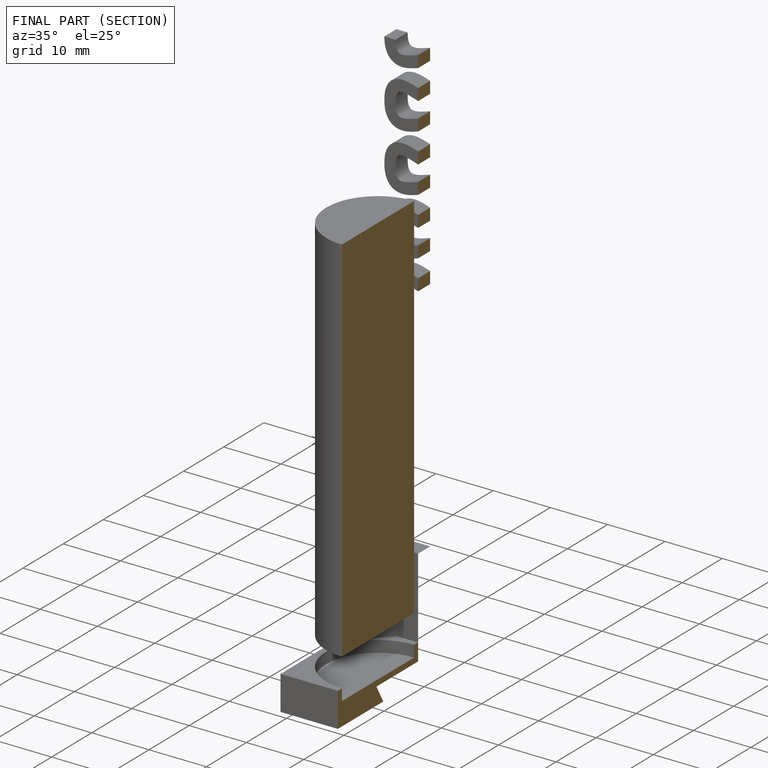
[diagram: finished part — half-section view (interior)]
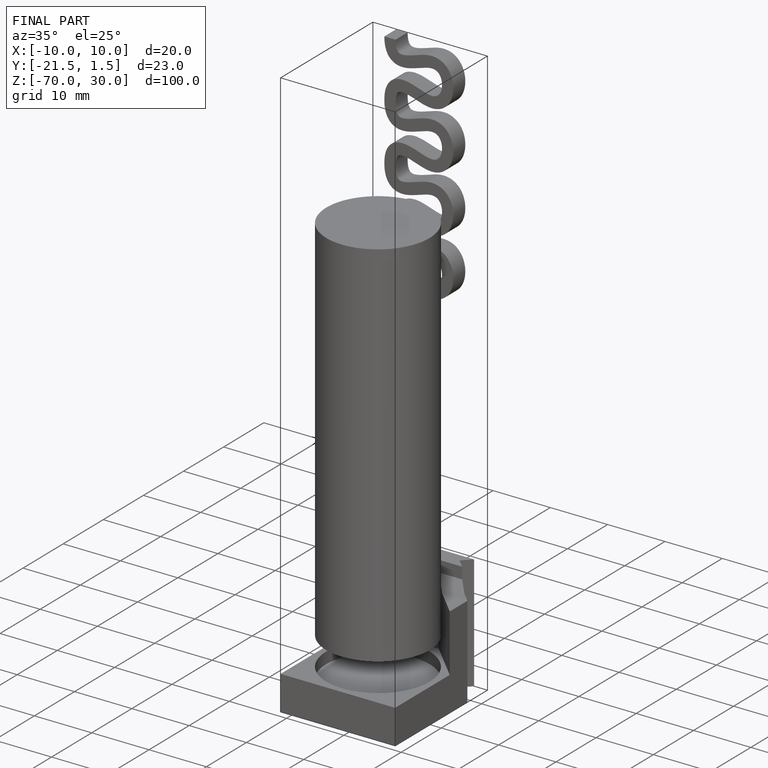
[diagram: finished part — iso view with bounding-box wireframe]
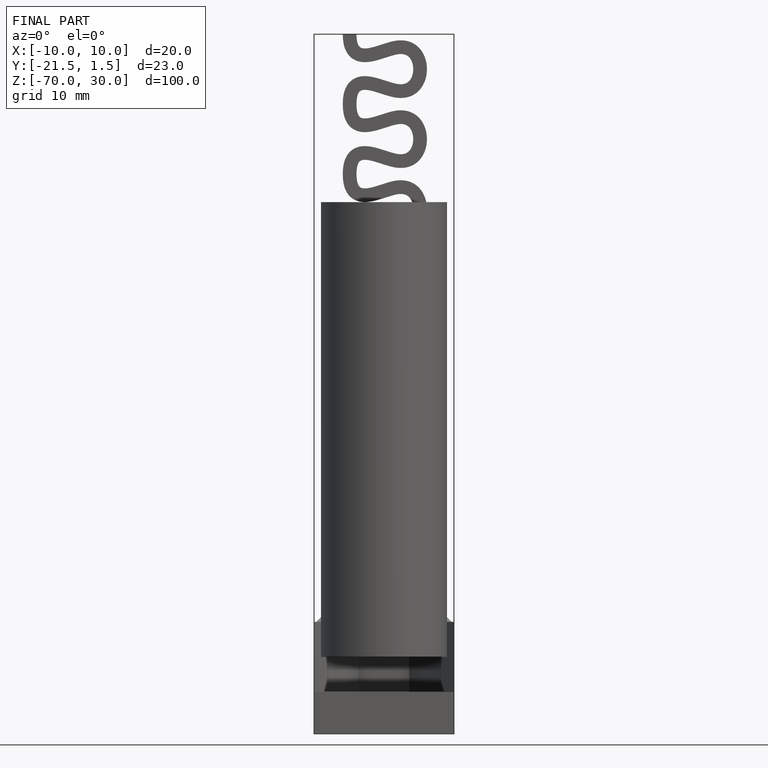
[diagram: finished part — front view with bounding-box wireframe]
